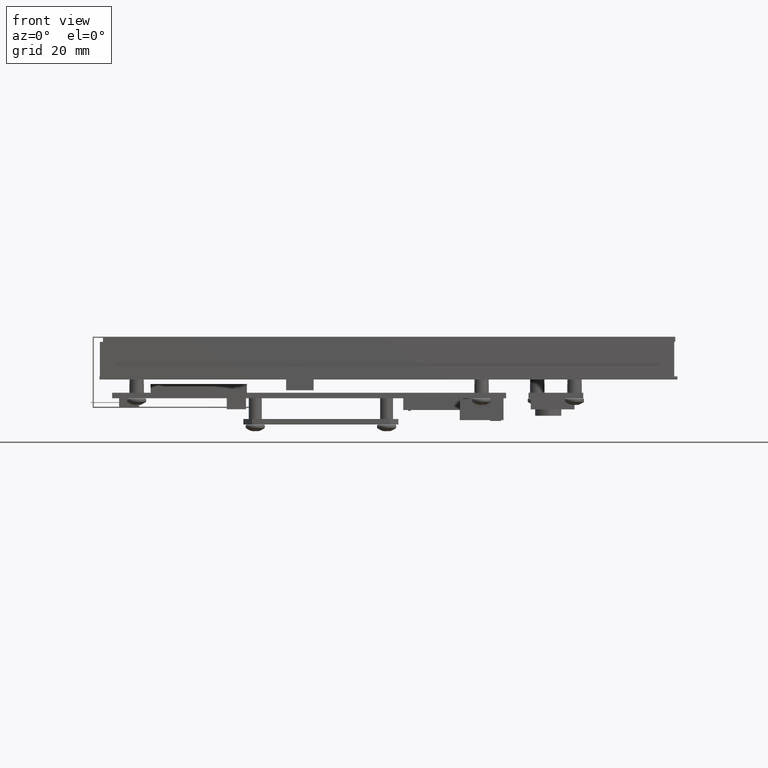
[diagram: clean part render]
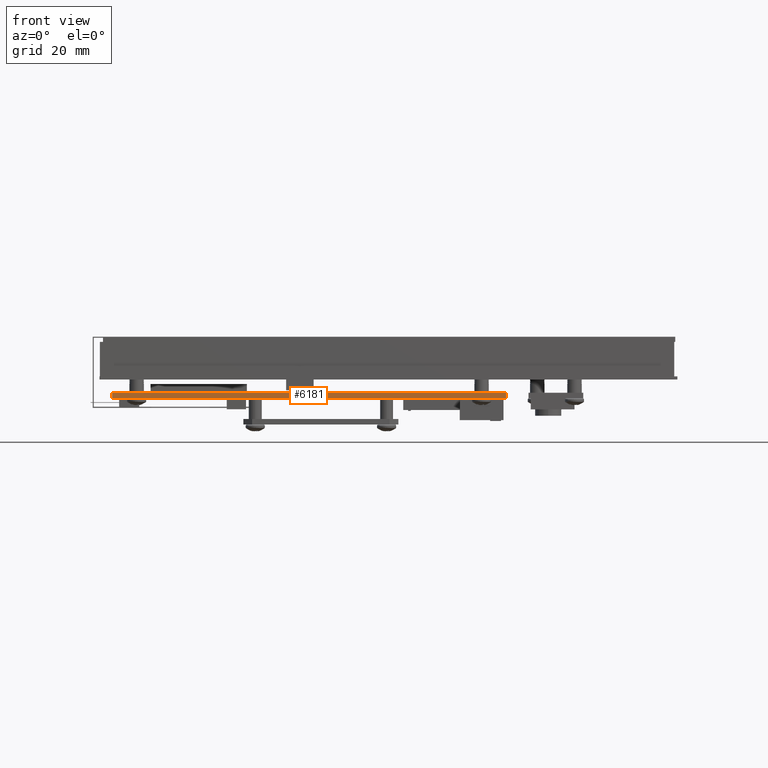
[diagram: same view with one face highlighted and labeled with its STEP entity id]
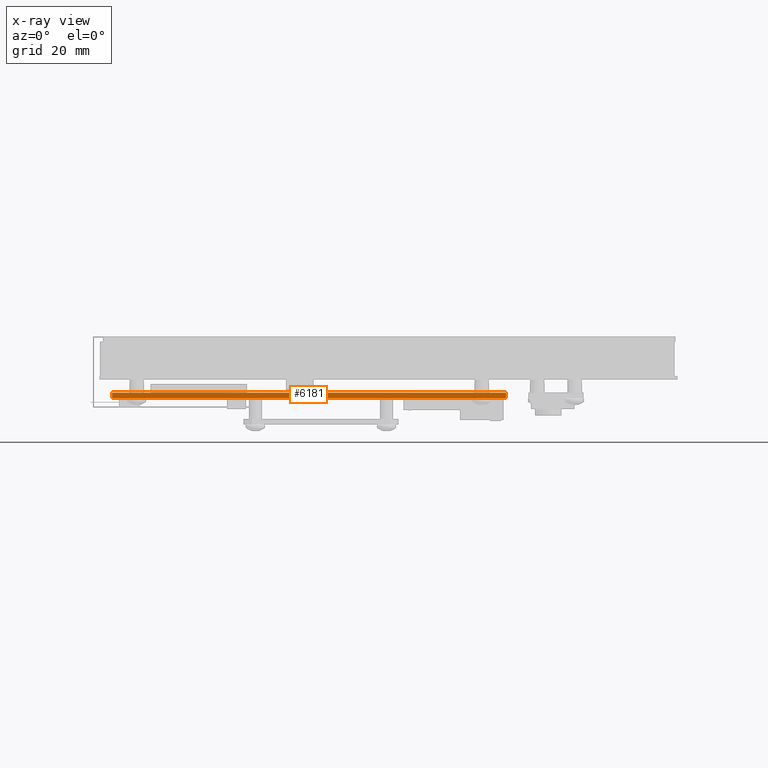
[diagram: x-ray of the same camera — body ghosted, the highlighted face saturated]
A machine part, front view. The second image highlights one B-rep face of the part: STEP entity #6181.
The next image is the same camera in x-ray: the body ghosted, the highlighted face saturated — about 0% of this face is hidden behind the body in this view.
In plain terms, the highlighted planar face has unit normal (-0, 1, 0).
Its self-contained STEP definition (entity closure, byte-faithful):
#294 = ORIENTED_EDGE ( 'NONE', *, *, #18048, .T. ) ;
#295 = ORIENTED_EDGE ( 'NONE', *, *, #18062, .F. ) ;
#296 = ORIENTED_EDGE ( 'NONE', *, *, #17973, .F. ) ;
#297 = ORIENTED_EDGE ( 'NONE', *, *, #18060, .T. ) ;
#1323 = VECTOR ( 'NONE', #11406, 39.37007874015748100 ) ;
#3179 = AXIS2_PLACEMENT_3D ( 'NONE', #3402, #3416, #3417 ) ;
#3402 = CARTESIAN_POINT ( 'NONE',  ( -2.249999999999992000, 0.06300000000000001400, 1.499999999999991100 ) ) ;
#3413 = FACE_OUTER_BOUND ( 'NONE', #20099, .T. ) ;
#3414 = PLANE ( 'NONE',  #3179 ) ;
#3416 = DIRECTION ( 'NONE',  ( -2.221858401857428700E-030, 9.860761315262708900E-032, -1.000000000000000000 ) ) ;
#3417 = DIRECTION ( 'NONE',  ( -1.000000000000000000, -3.944304526105071300E-031, 2.221858401857428700E-030 ) ) ;
#4113 = CARTESIAN_POINT ( 'NONE',  ( -2.249999999999992000, 4.780733988912460100E-016, 1.499999999999991100 ) ) ;
#4117 = CARTESIAN_POINT ( 'NONE',  ( 2.249999999999985300, 4.780733988912460100E-016, 1.499999999999992700 ) ) ;
#5812 = VECTOR ( 'NONE', #12197, 39.37007874015748100 ) ;
#5826 = VECTOR ( 'NONE', #12265, 39.37007874015748100 ) ;
#5828 = VECTOR ( 'NONE', #12276, 39.37007874015748100 ) ;
#6181 = ADVANCED_FACE ( 'NONE', ( #3413 ), #3414, .F. ) ;
#6413 = VERTEX_POINT ( 'NONE', #4113 ) ;
#6417 = VERTEX_POINT ( 'NONE', #4117 ) ;
#10682 = CARTESIAN_POINT ( 'NONE',  ( -2.249999999999992000, 0.06300000000000001400, 1.499999999999991100 ) ) ;
#10685 = CARTESIAN_POINT ( 'NONE',  ( 2.249999999999985300, 0.06300000000000001400, 1.499999999999992700 ) ) ;
#11394 = LINE ( 'NONE', #11403, #1323 ) ;
#11403 = CARTESIAN_POINT ( 'NONE',  ( -2.249999999999992000, 0.06300000000000001400, 1.499999999999991100 ) ) ;
#11406 = DIRECTION ( 'NONE',  ( 1.000000000000000000, 3.944304526105071300E-031, -2.221858401857429000E-030 ) ) ;
#12171 = LINE ( 'NONE', #12194, #5812 ) ;
#12194 = CARTESIAN_POINT ( 'NONE',  ( -2.249999999999992000, 4.780733988912460100E-016, 1.499999999999991100 ) ) ;
#12197 = DIRECTION ( 'NONE',  ( 1.000000000000000000, 3.944304526105071300E-031, -2.221858401857429000E-030 ) ) ;
#12260 = LINE ( 'NONE', #12263, #5826 ) ;
#12263 = CARTESIAN_POINT ( 'NONE',  ( -2.249999999999992000, 0.06300000000000001400, 1.499999999999991100 ) ) ;
#12265 = DIRECTION ( 'NONE',  ( -9.860761315262679100E-031, -1.000000000000000000, -1.232595164407834900E-031 ) ) ;
#12271 = LINE ( 'NONE', #12274, #5828 ) ;
#12274 = CARTESIAN_POINT ( 'NONE',  ( 2.249999999999985300, 0.06300000000000001400, 1.499999999999992700 ) ) ;
#12276 = DIRECTION ( 'NONE',  ( -9.860761315262679100E-031, -1.000000000000000000, -1.232595164407834900E-031 ) ) ;
#14439 = VERTEX_POINT ( 'NONE', #10682 ) ;
#14441 = VERTEX_POINT ( 'NONE', #10685 ) ;
#17973 = EDGE_CURVE ( 'NONE', #14439, #14441, #11394, .T. ) ;
#18048 = EDGE_CURVE ( 'NONE', #6413, #6417, #12171, .T. ) ;
#18060 = EDGE_CURVE ( 'NONE', #14439, #6413, #12260, .T. ) ;
#18062 = EDGE_CURVE ( 'NONE', #14441, #6417, #12271, .T. ) ;
#20099 = EDGE_LOOP ( 'NONE', ( #294, #295, #296, #297 ) ) ;